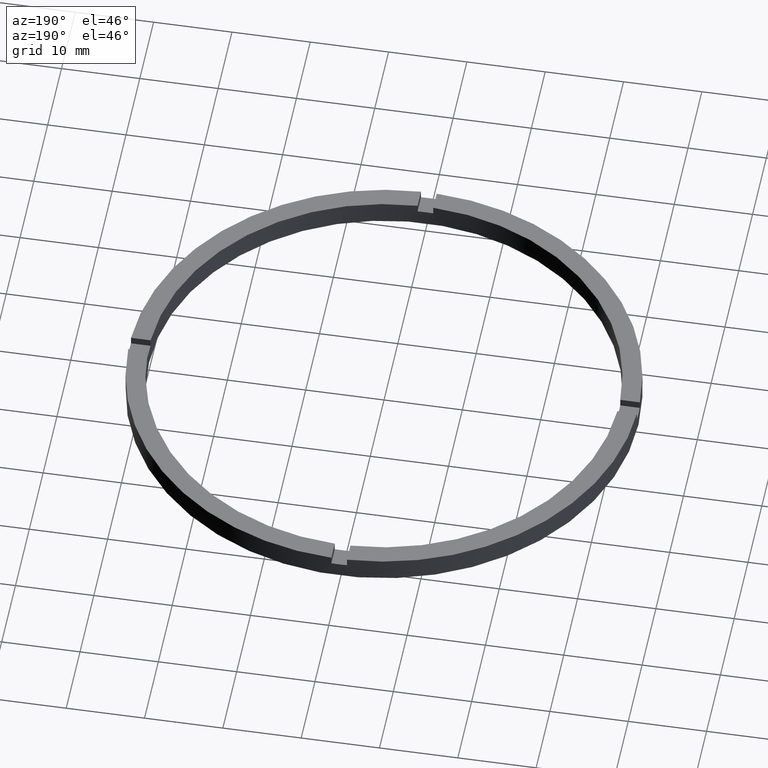
[diagram: clean part render]
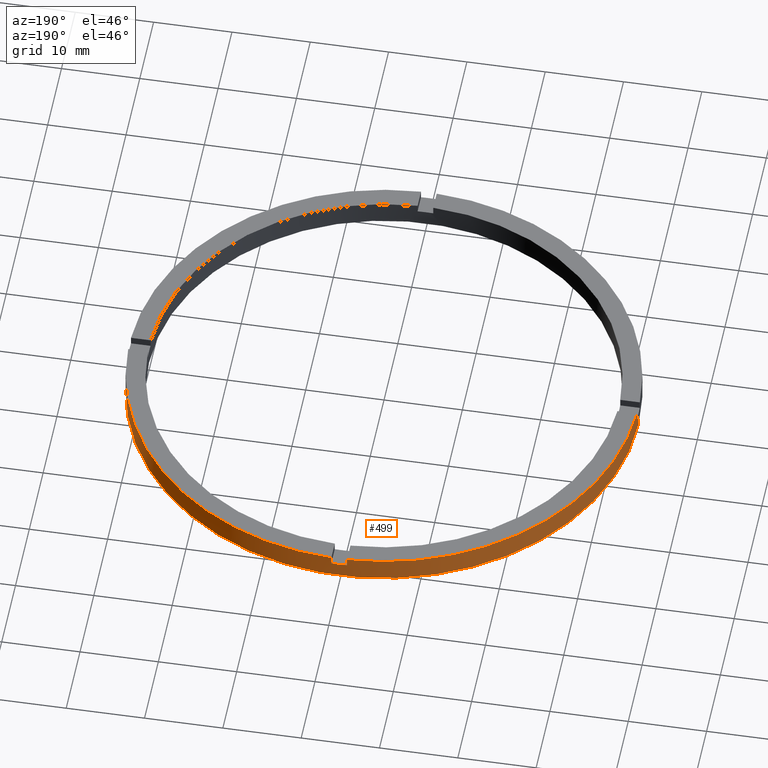
[diagram: same view with one face highlighted and labeled with its STEP entity id]
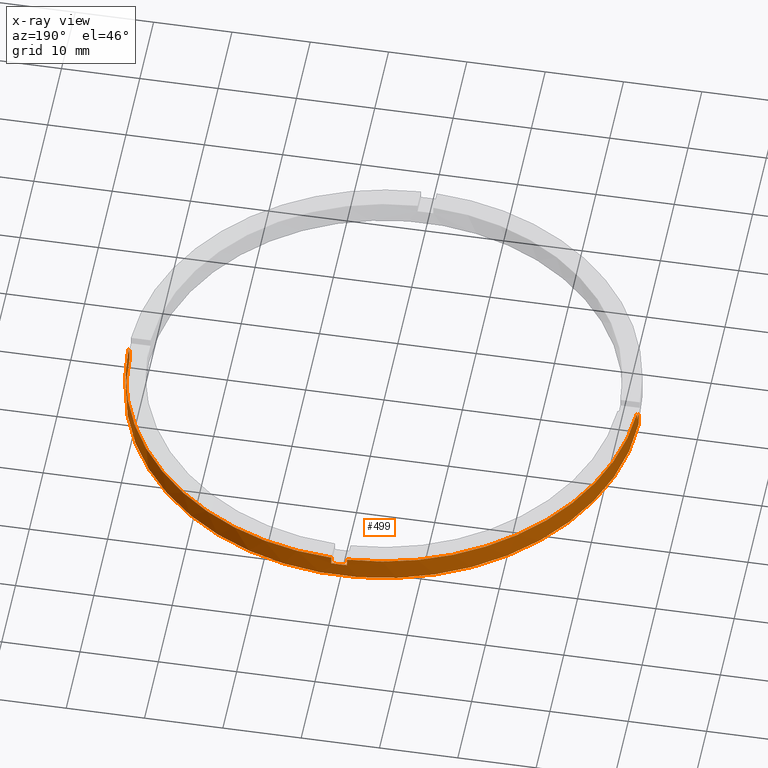
[diagram: x-ray of the same camera — body ghosted, the highlighted face saturated]
A machine part, auxiliary view. The second image highlights one B-rep face of the part: STEP entity #499.
The next image is the same camera in x-ray: the body ghosted, the highlighted face saturated — about 0% of this face is hidden behind the body in this view.
In plain terms, the highlighted cylindrical surface (partial cylindrical patch) has radius 32.5 mm, axis along (-0, -0, -1).
Its self-contained STEP definition (entity closure, byte-faithful):
#9 = CARTESIAN_POINT ( 'NONE',  ( 32.48461174156157938, 0.9999999999998414602, 3.000000000000000000 ) ) ;
#11 = AXIS2_PLACEMENT_3D ( 'NONE', #281, #398, #147 ) ;
#19 = ORIENTED_EDGE ( 'NONE', *, *, #447, .T. ) ;
#20 = EDGE_CURVE ( 'NONE', #28, #174, #748, .T. ) ;
#28 = VERTEX_POINT ( 'NONE', #503 ) ;
#38 = VERTEX_POINT ( 'NONE', #614 ) ;
#40 = CARTESIAN_POINT ( 'NONE',  ( 32.50000000000000000, 3.980102097228898626E-15, 0.000000000000000000 ) ) ;
#45 = EDGE_CURVE ( 'NONE', #38, #174, #239, .T. ) ;
#63 = CARTESIAN_POINT ( 'NONE',  ( 0.000000000000000000, 0.000000000000000000, 0.000000000000000000 ) ) ;
#64 = EDGE_CURVE ( 'NONE', #28, #303, #762, .T. ) ;
#82 = CARTESIAN_POINT ( 'NONE',  ( -1.000000000000024647, 32.48461174156157227, 3.000000000000000000 ) ) ;
#91 = LINE ( 'NONE', #638, #357 ) ;
#92 = CYLINDRICAL_SURFACE ( 'NONE', #453, 32.50000000000000000 ) ;
#97 = DIRECTION ( 'NONE',  ( -1.000000000000000000, 0.000000000000000000, 0.000000000000000000 ) ) ;
#99 = EDGE_CURVE ( 'NONE', #649, #697, #775, .T. ) ;
#105 = CARTESIAN_POINT ( 'NONE',  ( 32.48461174156157938, 0.9999999999998414602, 2.000000000000000000 ) ) ;
#112 = CARTESIAN_POINT ( 'NONE',  ( 0.000000000000000000, 0.000000000000000000, 3.000000000000000000 ) ) ;
#114 = EDGE_CURVE ( 'NONE', #705, #479, #783, .T. ) ;
#115 = DIRECTION ( 'NONE',  ( 1.000000000000000000, 0.000000000000000000, 0.000000000000000000 ) ) ;
#122 = DIRECTION ( 'NONE',  ( 0.000000000000000000, 0.000000000000000000, 1.000000000000000000 ) ) ;
#129 = DIRECTION ( 'NONE',  ( -0.000000000000000000, -0.000000000000000000, -1.000000000000000000 ) ) ;
#130 = CARTESIAN_POINT ( 'NONE',  ( 0.000000000000000000, 0.000000000000000000, 2.000000000000000000 ) ) ;
#143 = CARTESIAN_POINT ( 'NONE',  ( -32.50000000000000000, 0.000000000000000000, 0.000000000000000000 ) ) ;
#147 = DIRECTION ( 'NONE',  ( 1.000000000000000000, 0.000000000000000000, 0.000000000000000000 ) ) ;
#174 = VERTEX_POINT ( 'NONE', #105 ) ;
#179 = VERTEX_POINT ( 'NONE', #143 ) ;
#183 = DIRECTION ( 'NONE',  ( 1.000000000000000000, 0.000000000000000000, 0.000000000000000000 ) ) ;
#190 = DIRECTION ( 'NONE',  ( 0.000000000000000000, -0.000000000000000000, 1.000000000000000000 ) ) ;
#201 = CARTESIAN_POINT ( 'NONE',  ( -32.48461174156157227, 0.9999999999999740208, 3.000000000000000000 ) ) ;
#202 = DIRECTION ( 'NONE',  ( 1.000000000000000000, 0.000000000000000000, 0.000000000000000000 ) ) ;
#207 = VERTEX_POINT ( 'NONE', #405 ) ;
#208 = ORIENTED_EDGE ( 'NONE', *, *, #373, .F. ) ;
#209 = EDGE_CURVE ( 'NONE', #245, #179, #268, .T. ) ;
#232 = ORIENTED_EDGE ( 'NONE', *, *, #45, .F. ) ;
#233 = DIRECTION ( 'NONE',  ( 0.000000000000000000, 0.000000000000000000, 1.000000000000000000 ) ) ;
#239 = CIRCLE ( 'NONE', #321, 32.50000000000000000 ) ;
#242 = ORIENTED_EDGE ( 'NONE', *, *, #20, .T. ) ;
#243 = CIRCLE ( 'NONE', #529, 32.50000000000000000 ) ;
#245 = VERTEX_POINT ( 'NONE', #40 ) ;
#268 = CIRCLE ( 'NONE', #678, 32.50000000000000000 ) ;
#279 = CARTESIAN_POINT ( 'NONE',  ( -32.50000000000000000, 0.000000000000000000, 3.000000000000000000 ) ) ;
#281 = CARTESIAN_POINT ( 'NONE',  ( 0.000000000000000000, 0.000000000000000000, 2.000000000000000000 ) ) ;
#288 = ORIENTED_EDGE ( 'NONE', *, *, #114, .F. ) ;
#293 = DIRECTION ( 'NONE',  ( 0.000000000000000000, 0.000000000000000000, 1.000000000000000000 ) ) ;
#303 = VERTEX_POINT ( 'NONE', #472 ) ;
#304 = DIRECTION ( 'NONE',  ( -0.000000000000000000, -0.000000000000000000, -1.000000000000000000 ) ) ;
#321 = AXIS2_PLACEMENT_3D ( 'NONE', #380, #706, #115 ) ;
#322 = VECTOR ( 'NONE', #647, 1000.000000000000000 ) ;
#331 = CARTESIAN_POINT ( 'NONE',  ( 0.9999999999999753530, 32.48461174156157227, 3.000000000000000000 ) ) ;
#343 = DIRECTION ( 'NONE',  ( 0.000000000000000000, 0.000000000000000000, 1.000000000000000000 ) ) ;
#347 = CARTESIAN_POINT ( 'NONE',  ( 0.9999999999999753530, 32.48461174156157227, 2.000000000000000000 ) ) ;
#351 = LINE ( 'NONE', #82, #600 ) ;
#354 = EDGE_CURVE ( 'NONE', #483, #179, #571, .T. ) ;
#357 = VECTOR ( 'NONE', #304, 1000.000000000000000 ) ;
#358 = FACE_OUTER_BOUND ( 'NONE', #644, .T. ) ;
#373 = EDGE_CURVE ( 'NONE', #207, #697, #243, .T. ) ;
#379 = CARTESIAN_POINT ( 'NONE',  ( -32.50000000000000000, 0.000000000000000000, 2.000000000000000000 ) ) ;
#380 = CARTESIAN_POINT ( 'NONE',  ( 0.000000000000000000, 0.000000000000000000, 2.000000000000000000 ) ) ;
#398 = DIRECTION ( 'NONE',  ( 0.000000000000000000, 0.000000000000000000, 1.000000000000000000 ) ) ;
#405 = CARTESIAN_POINT ( 'NONE',  ( -1.000000000000024647, 32.48461174156157227, 3.000000000000000000 ) ) ;
#421 = CARTESIAN_POINT ( 'NONE',  ( 0.000000000000000000, 0.000000000000000000, 3.000000000000000000 ) ) ;
#432 = DIRECTION ( 'NONE',  ( -0.000000000000000000, -0.000000000000000000, -1.000000000000000000 ) ) ;
#437 = ORIENTED_EDGE ( 'NONE', *, *, #209, .T. ) ;
#439 = ORIENTED_EDGE ( 'NONE', *, *, #723, .F. ) ;
#443 = AXIS2_PLACEMENT_3D ( 'NONE', #421, #122, #554 ) ;
#447 = EDGE_CURVE ( 'NONE', #38, #245, #91, .T. ) ;
#453 = AXIS2_PLACEMENT_3D ( 'NONE', #737, #432, #97 ) ;
#459 = DIRECTION ( 'NONE',  ( 0.000000000000000000, 0.000000000000000000, 1.000000000000000000 ) ) ;
#472 = CARTESIAN_POINT ( 'NONE',  ( 0.9999999999999753530, 32.48461174156157227, 3.000000000000000000 ) ) ;
#473 = AXIS2_PLACEMENT_3D ( 'NONE', #130, #190, #183 ) ;
#479 = VERTEX_POINT ( 'NONE', #558 ) ;
#483 = VERTEX_POINT ( 'NONE', #379 ) ;
#484 = EDGE_CURVE ( 'NONE', #207, #479, #351, .T. ) ;
#489 = DIRECTION ( 'NONE',  ( -0.000000000000000000, -0.000000000000000000, -1.000000000000000000 ) ) ;
#499 = ADVANCED_FACE ( 'NONE', ( #358 ), #92, .T. ) ;
#503 = CARTESIAN_POINT ( 'NONE',  ( 32.48461174156157938, 0.9999999999998414602, 3.000000000000000000 ) ) ;
#512 = EDGE_CURVE ( 'NONE', #705, #303, #609, .T. ) ;
#526 = VECTOR ( 'NONE', #233, 1000.000000000000000 ) ;
#529 = AXIS2_PLACEMENT_3D ( 'NONE', #112, #293, #700 ) ;
#535 = CIRCLE ( 'NONE', #11, 32.50000000000000000 ) ;
#554 = DIRECTION ( 'NONE',  ( 1.000000000000000000, 0.000000000000000000, 0.000000000000000000 ) ) ;
#558 = CARTESIAN_POINT ( 'NONE',  ( -1.000000000000024647, 32.48461174156157227, 2.000000000000000000 ) ) ;
#571 = LINE ( 'NONE', #279, #322 ) ;
#600 = VECTOR ( 'NONE', #129, 1000.000000000000000 ) ;
#607 = VECTOR ( 'NONE', #343, 1000.000000000000000 ) ;
#609 = LINE ( 'NONE', #331, #607 ) ;
#614 = CARTESIAN_POINT ( 'NONE',  ( 32.50000000000000000, 3.980102097228898626E-15, 2.000000000000000000 ) ) ;
#638 = CARTESIAN_POINT ( 'NONE',  ( 32.50000000000000000, 3.980102097228898626E-15, 3.000000000000000000 ) ) ;
#644 = EDGE_LOOP ( 'NONE', ( #232, #19, #437, #744, #439, #657, #208, #727, #288, #708, #713, #242 ) ) ;
#647 = DIRECTION ( 'NONE',  ( -0.000000000000000000, -0.000000000000000000, -1.000000000000000000 ) ) ;
#649 = VERTEX_POINT ( 'NONE', #749 ) ;
#657 = ORIENTED_EDGE ( 'NONE', *, *, #99, .T. ) ;
#678 = AXIS2_PLACEMENT_3D ( 'NONE', #63, #459, #202 ) ;
#697 = VERTEX_POINT ( 'NONE', #201 ) ;
#700 = DIRECTION ( 'NONE',  ( 1.000000000000000000, 0.000000000000000000, 0.000000000000000000 ) ) ;
#705 = VERTEX_POINT ( 'NONE', #347 ) ;
#706 = DIRECTION ( 'NONE',  ( 0.000000000000000000, 0.000000000000000000, 1.000000000000000000 ) ) ;
#708 = ORIENTED_EDGE ( 'NONE', *, *, #512, .T. ) ;
#713 = ORIENTED_EDGE ( 'NONE', *, *, #64, .F. ) ;
#723 = EDGE_CURVE ( 'NONE', #649, #483, #535, .T. ) ;
#725 = CARTESIAN_POINT ( 'NONE',  ( -32.48461174156157227, 0.9999999999999740208, 3.000000000000000000 ) ) ;
#727 = ORIENTED_EDGE ( 'NONE', *, *, #484, .T. ) ;
#737 = CARTESIAN_POINT ( 'NONE',  ( 0.000000000000000000, 0.000000000000000000, 3.000000000000000000 ) ) ;
#744 = ORIENTED_EDGE ( 'NONE', *, *, #354, .F. ) ;
#748 = LINE ( 'NONE', #9, #771 ) ;
#749 = CARTESIAN_POINT ( 'NONE',  ( -32.48461174156157227, 0.9999999999999740208, 2.000000000000000000 ) ) ;
#762 = CIRCLE ( 'NONE', #443, 32.50000000000000000 ) ;
#771 = VECTOR ( 'NONE', #489, 1000.000000000000000 ) ;
#775 = LINE ( 'NONE', #725, #526 ) ;
#783 = CIRCLE ( 'NONE', #473, 32.50000000000000000 ) ;